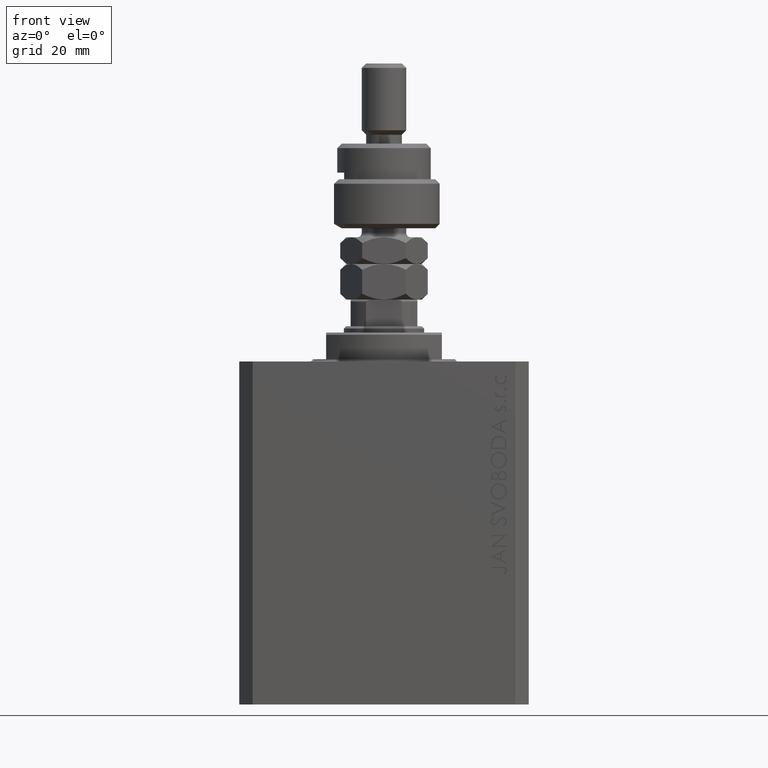
[diagram: clean part render]
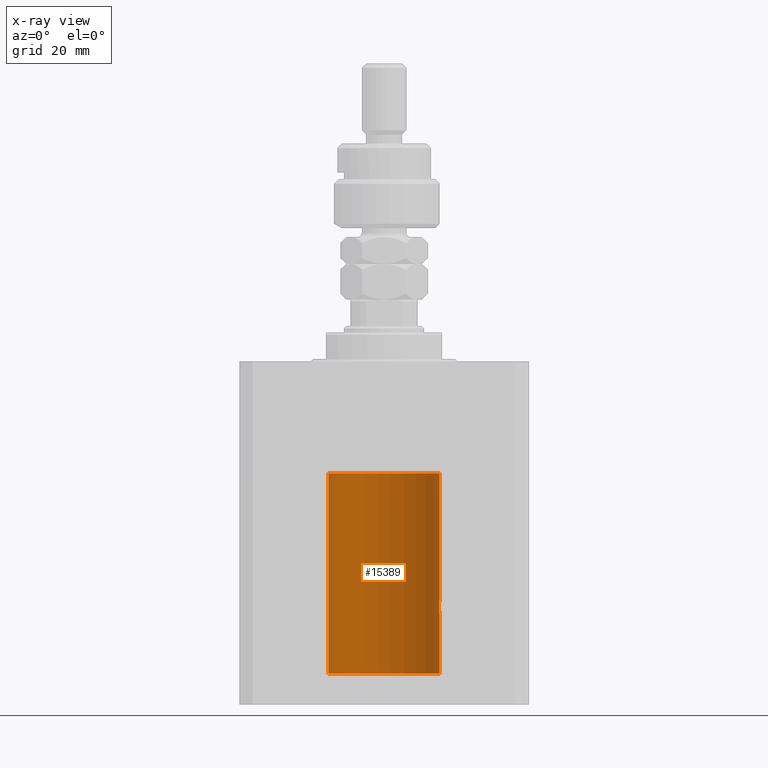
[diagram: x-ray — body ghosted, one internal face saturated and labeled with its STEP entity id]
A machine part, front view, then the same camera in x-ray: the body is ghosted and one INTERNAL B-rep face — a face not visible from any outside direction — is saturated and labeled: STEP entity #15389.
In plain terms, the highlighted cylindrical surface (partial cylindrical patch) has radius 12.5 mm, axis along (0, 0, 1).
Its self-contained STEP definition (entity closure, byte-faithful):
#113 = VERTEX_POINT ( 'NONE', #45105 ) ;
#299 = B_SPLINE_CURVE_WITH_KNOTS ( 'NONE', 3,
 ( #34069, #22789, #1146, #37415, #33826, #903, #11978, #30477, #42622, #10430, #28002, #13322, #19885, #10201, #39250, #17415, #13563, #32065 ),
 .UNSPECIFIED., .F., .F.,
 ( 4, 2, 2, 2, 2, 2, 2, 2, 4 ),
 ( 0.003132244164174471934, 0.003523586189974247697, 0.003914928215774023459, 0.004306270241573798355, 0.004697612267373574985, 0.005088954293173349880, 0.005480296318973125642, 0.005871638344772901405, 0.006262980370572677168 ),
 .UNSPECIFIED. ) ;
#576 = CARTESIAN_POINT ( 'NONE',  ( 12.50000000000000000, 0.000000000000000000, -70.09999999999999432 ) ) ;
#903 = CARTESIAN_POINT ( 'NONE',  ( 12.37021546997940113, 1.797317011867410219, -54.11295119741077286 ) ) ;
#1118 = AXIS2_PLACEMENT_3D ( 'NONE', #34901, #31777, #9430 ) ;
#1146 = CARTESIAN_POINT ( 'NONE',  ( 12.34110728646152211, 1.986893050944461780, -54.73661347764981144 ) ) ;
#1456 = DIRECTION ( 'NONE',  ( -0.000000000000000000, -0.000000000000000000, 1.000000000000000000 ) ) ;
#2037 = CARTESIAN_POINT ( 'NONE',  ( 12.33896267925302581, 2.000000000000254463, -55.00000000000000000 ) ) ;
#2456 = CYLINDRICAL_SURFACE ( 'NONE', #1118, 12.50000000000000000 ) ;
#3675 = VECTOR ( 'NONE', #1456, 1000.000000000000000 ) ;
#4265 = AXIS2_PLACEMENT_3D ( 'NONE', #20436, #12984, #31016 ) ;
#4940 = CARTESIAN_POINT ( 'NONE',  ( 12.48390005916862755, 0.6457215011736598953, -56.89742771554266199 ) ) ;
#5172 = CARTESIAN_POINT ( 'NONE',  ( 12.39869754437269123, 1.598954131913734145, -56.22932152813013573 ) ) ;
#6178 = VERTEX_POINT ( 'NONE', #20620 ) ;
#6388 = ORIENTED_EDGE ( 'NONE', *, *, #21439, .F. ) ;
#8025 = VECTOR ( 'NONE', #37348, 1000.000000000000000 ) ;
#8788 = CARTESIAN_POINT ( 'NONE',  ( 12.43016561391612207, 1.322713721413891319, -56.50578877836699121 ) ) ;
#9430 = DIRECTION ( 'NONE',  ( 1.000000000000000000, 0.000000000000000000, 0.000000000000000000 ) ) ;
#10201 = CARTESIAN_POINT ( 'NONE',  ( 12.48395395845270528, 0.6446573166014709644, -53.10222124213520090 ) ) ;
#10383 = CIRCLE ( 'NONE', #4265, 12.50000000000000000 ) ;
#10430 = CARTESIAN_POINT ( 'NONE',  ( 12.43037348241797879, 1.320834183883846435, -53.49243837704294435 ) ) ;
#11978 = CARTESIAN_POINT ( 'NONE',  ( 12.37925647381943506, 1.734744884174225898, -53.99620732598648942 ) ) ;
#12163 = CARTESIAN_POINT ( 'NONE',  ( 12.50000000000000533, 0.1324055009716460785, -57.00000000000003553 ) ) ;
#12185 = EDGE_CURVE ( 'NONE', #26874, #14733, #22016, .T. ) ;
#12984 = DIRECTION ( 'NONE',  ( 0.000000000000000000, 0.000000000000000000, 1.000000000000000000 ) ) ;
#13322 = CARTESIAN_POINT ( 'NONE',  ( 12.46011632531799407, 1.003644408234889429, -53.26516799687669135 ) ) ;
#13563 = CARTESIAN_POINT ( 'NONE',  ( 12.50000000000000000, 0.1306079576516681051, -52.99999999999999289 ) ) ;
#14733 = VERTEX_POINT ( 'NONE', #42034 ) ;
#15026 = CARTESIAN_POINT ( 'NONE',  ( 12.50000000000000000, 0.000000000000000000, -70.09999999999999432 ) ) ;
#15243 = DIRECTION ( 'NONE',  ( -0.000000000000000000, -0.000000000000000000, 1.000000000000000000 ) ) ;
#15389 = ADVANCED_FACE ( 'NONE', ( #35609 ), #2456, .F. ) ;
#15407 = CARTESIAN_POINT ( 'NONE',  ( -12.50000000000000000, 1.530808498934191127E-15, -70.09999999999999432 ) ) ;
#15943 = EDGE_CURVE ( 'NONE', #34354, #113, #20901, .T. ) ;
#16004 = CARTESIAN_POINT ( 'NONE',  ( 12.46901623405143766, 0.8878913781257957716, -56.79689651717549737 ) ) ;
#17415 = CARTESIAN_POINT ( 'NONE',  ( 12.49788668346400122, 0.2632864803365722595, -53.01308975838332316 ) ) ;
#18079 = ORIENTED_EDGE ( 'NONE', *, *, #15943, .T. ) ;
#18912 = ORIENTED_EDGE ( 'NONE', *, *, #37935, .T. ) ;
#19492 = LINE ( 'NONE', #15407, #3675 ) ;
#19674 = DIRECTION ( 'NONE',  ( 0.000000000000000000, 0.000000000000000000, 1.000000000000000000 ) ) ;
#19839 = CARTESIAN_POINT ( 'NONE',  ( 12.37760587642916477, 1.747868572747724114, -56.00639653169000098 ) ) ;
#19885 = CARTESIAN_POINT ( 'NONE',  ( 12.46910683544638232, 0.8866026273585058126, -53.20247863689694157 ) ) ;
#20436 = CARTESIAN_POINT ( 'NONE',  ( 0.000000000000000000, 0.000000000000000000, -70.09999999999999432 ) ) ;
#20620 = CARTESIAN_POINT ( 'NONE',  ( -12.50000000000000000, 1.530808498934191127E-15, -25.10000000000000142 ) ) ;
#20901 = B_SPLINE_CURVE_WITH_KNOTS ( 'NONE', 3,
 ( #45059, #12163, #38083, #26826, #4940, #16004, #45296, #41692, #8788, #5172, #19839, #32309, #42638, #2037 ),
 .UNSPECIFIED., .F., .F.,
 ( 4, 2, 2, 2, 2, 2, 4 ),
 ( 4.027442422438711134E-18, 0.0003915305205218086665, 0.0007830610410436133215, 0.001174591561565418085, 0.001566122082087222740, 0.002349183123130847445, 0.003132244164174471934 ),
 .UNSPECIFIED. ) ;
#20958 = ORIENTED_EDGE ( 'NONE', *, *, #32446, .F. ) ;
#20967 = EDGE_CURVE ( 'NONE', #113, #26874, #299, .T. ) ;
#21409 = EDGE_LOOP ( 'NONE', ( #20958, #6388, #18912, #18079, #25687, #37635, #30731 ) ) ;
#21439 = EDGE_CURVE ( 'NONE', #46583, #46147, #10383, .T. ) ;
#22016 = LINE ( 'NONE', #15026, #8025 ) ;
#22556 = CARTESIAN_POINT ( 'NONE',  ( 12.50000000000000000, 0.000000000000000000, -70.09999999999999432 ) ) ;
#22789 = CARTESIAN_POINT ( 'NONE',  ( 12.33896267925302226, 2.000000000000254463, -54.86934705949917657 ) ) ;
#23186 = LINE ( 'NONE', #576, #46054 ) ;
#25687 = ORIENTED_EDGE ( 'NONE', *, *, #20967, .T. ) ;
#26826 = CARTESIAN_POINT ( 'NONE',  ( 12.48989642018887736, 0.5185418732824300658, -56.93601292187608465 ) ) ;
#26874 = VERTEX_POINT ( 'NONE', #26979 ) ;
#26979 = CARTESIAN_POINT ( 'NONE',  ( 12.50000000000000000, -7.266276684081261841E-23, -53.00000000000000000 ) ) ;
#27362 = CARTESIAN_POINT ( 'NONE',  ( 0.000000000000000000, 0.000000000000000000, -25.10000000000000142 ) ) ;
#28002 = CARTESIAN_POINT ( 'NONE',  ( 12.44079117518645461, 1.220047488436375227, -53.40989676335082237 ) ) ;
#28389 = CIRCLE ( 'NONE', #45241, 12.50000000000000000 ) ;
#30477 = CARTESIAN_POINT ( 'NONE',  ( 12.39867611624532806, 1.590019252152835794, -53.77984495929610631 ) ) ;
#30731 = ORIENTED_EDGE ( 'NONE', *, *, #36561, .T. ) ;
#31016 = DIRECTION ( 'NONE',  ( 1.000000000000000000, 0.000000000000000000, 0.000000000000000000 ) ) ;
#31777 = DIRECTION ( 'NONE',  ( -0.000000000000000000, -0.000000000000000000, 1.000000000000000000 ) ) ;
#31938 = CARTESIAN_POINT ( 'NONE',  ( 12.50000000000000000, -2.972540724237087735E-15, -57.00000000000000000 ) ) ;
#32065 = CARTESIAN_POINT ( 'NONE',  ( 12.50000000000000000, -7.266276684081261841E-23, -53.00000000000000000 ) ) ;
#32309 = CARTESIAN_POINT ( 'NONE',  ( 12.34779119491631505, 1.947363444907015184, -55.52502775168252924 ) ) ;
#32446 = EDGE_CURVE ( 'NONE', #46147, #6178, #19492, .T. ) ;
#33826 = CARTESIAN_POINT ( 'NONE',  ( 12.35520276972935250, 1.897773362058245761, -54.35528278634336630 ) ) ;
#34069 = CARTESIAN_POINT ( 'NONE',  ( 12.33896267925302581, 2.000000000000254463, -55.00000000000000000 ) ) ;
#34354 = VERTEX_POINT ( 'NONE', #31938 ) ;
#34901 = CARTESIAN_POINT ( 'NONE',  ( 0.000000000000000000, 0.000000000000000000, -70.09999999999999432 ) ) ;
#35599 = CARTESIAN_POINT ( 'NONE',  ( -12.50000000000000000, 1.530808498934191127E-15, -70.09999999999999432 ) ) ;
#35609 = FACE_OUTER_BOUND ( 'NONE', #21409, .T. ) ;
#36561 = EDGE_CURVE ( 'NONE', #14733, #6178, #28389, .T. ) ;
#37348 = DIRECTION ( 'NONE',  ( -0.000000000000000000, -0.000000000000000000, 1.000000000000000000 ) ) ;
#37415 = CARTESIAN_POINT ( 'NONE',  ( 12.34924836377099844, 1.935649219704940194, -54.48002062127162759 ) ) ;
#37635 = ORIENTED_EDGE ( 'NONE', *, *, #12185, .T. ) ;
#37935 = EDGE_CURVE ( 'NONE', #46583, #34354, #23186, .T. ) ;
#38083 = CARTESIAN_POINT ( 'NONE',  ( 12.49789833780794446, 0.2625555164371062844, -56.98698170822145670 ) ) ;
#39250 = CARTESIAN_POINT ( 'NONE',  ( 12.48983962833819028, 0.5199974825204921602, -53.06435160808016605 ) ) ;
#41692 = CARTESIAN_POINT ( 'NONE',  ( 12.44079900692650753, 1.220007525301745277, -56.59017579083666760 ) ) ;
#41991 = DIRECTION ( 'NONE',  ( 1.000000000000000000, 0.000000000000000000, 0.000000000000000000 ) ) ;
#42034 = CARTESIAN_POINT ( 'NONE',  ( 12.50000000000000000, 0.000000000000000000, -25.10000000000000142 ) ) ;
#42622 = CARTESIAN_POINT ( 'NONE',  ( 12.40916530024876963, 1.507117913375724649, -53.67865955049006033 ) ) ;
#42638 = CARTESIAN_POINT ( 'NONE',  ( 12.33896267925302759, 2.000000000000254463, -55.26143174220786136 ) ) ;
#45059 = CARTESIAN_POINT ( 'NONE',  ( 12.50000000000000000, -2.972540724237087735E-15, -57.00000000000000000 ) ) ;
#45105 = CARTESIAN_POINT ( 'NONE',  ( 12.33896267925302581, 2.000000000000254463, -55.00000000000000000 ) ) ;
#45241 = AXIS2_PLACEMENT_3D ( 'NONE', #27362, #19674, #41991 ) ;
#45296 = CARTESIAN_POINT ( 'NONE',  ( 12.46019522898365217, 1.002712894177341107, -56.73540896027601832 ) ) ;
#46054 = VECTOR ( 'NONE', #15243, 1000.000000000000000 ) ;
#46147 = VERTEX_POINT ( 'NONE', #35599 ) ;
#46583 = VERTEX_POINT ( 'NONE', #22556 ) ;